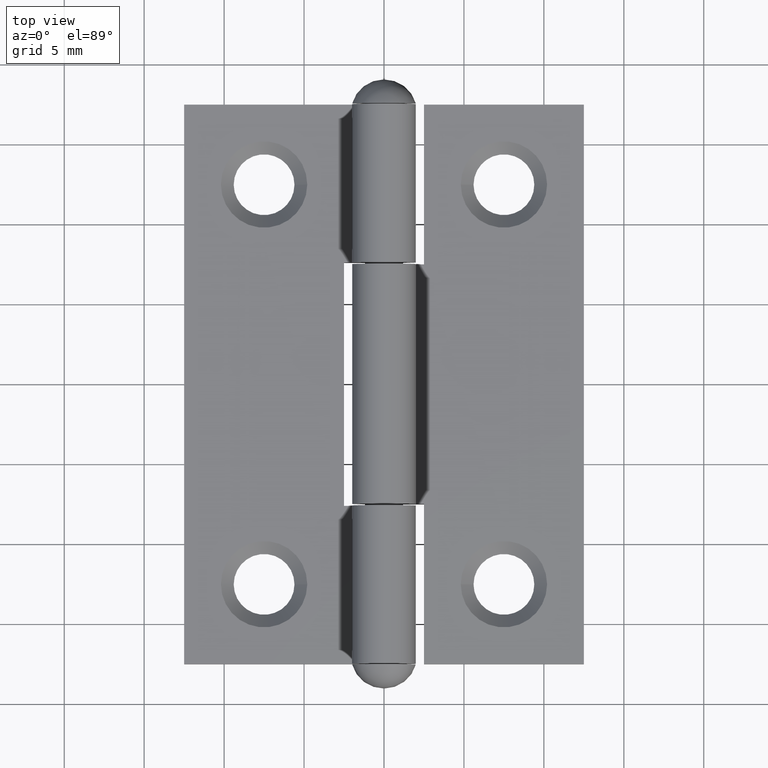
[diagram: clean part render]
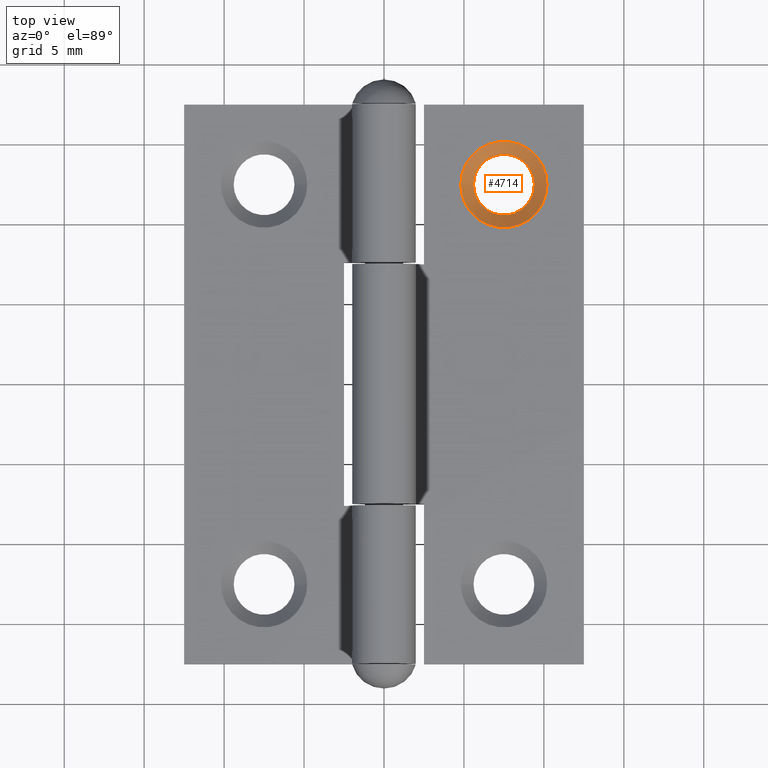
[diagram: same view with one face highlighted and labeled with its STEP entity id]
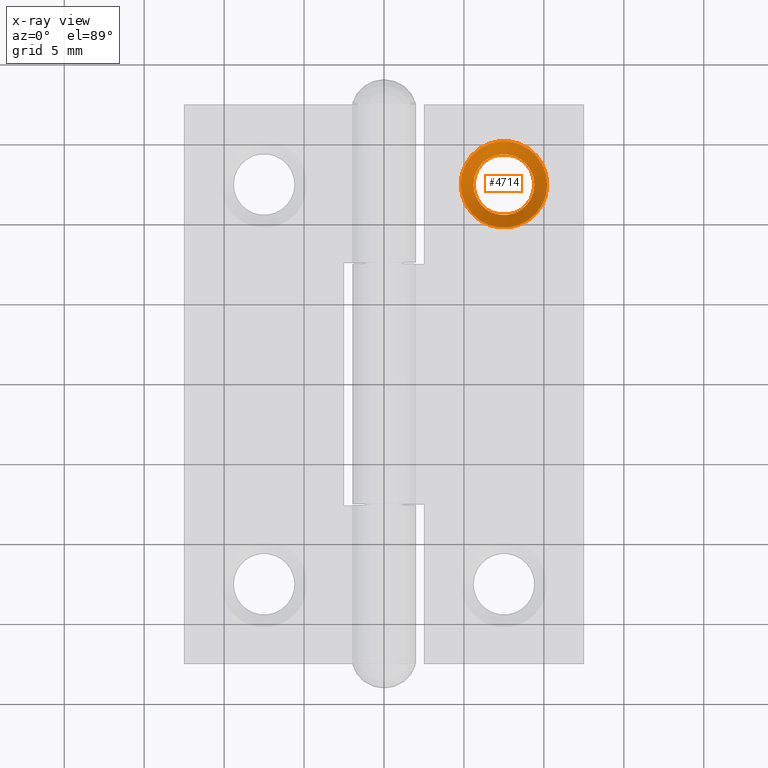
[diagram: x-ray of the same camera — body ghosted, the highlighted face saturated]
A machine part, top view. The second image highlights one B-rep face of the part: STEP entity #4714.
The next image is the same camera in x-ray: the body ghosted, the highlighted face saturated — about 0% of this face is hidden behind the body in this view.
In plain terms, the highlighted conical surface has half-angle 45 deg.
Its self-contained STEP definition (entity closure, byte-faithful):
#526 = ORIENTED_EDGE ( 'NONE', *, *, #4999, .F. ) ;
#1183 = FACE_OUTER_BOUND ( 'NONE', #4174, .T. ) ;
#1283 = CARTESIAN_POINT ( 'NONE',  ( -9.500000000000001776, -12.50000000000000178, 2.168404344971008868E-16 ) ) ;
#1420 = CONICAL_SURFACE ( 'NONE', #5784, 1.900000000000000577, 0.7853981633974482790 ) ;
#1536 = DIRECTION ( 'NONE',  ( -1.000000000000000000, 0.000000000000000000, 1.204669080539452055E-16 ) ) ;
#2130 = AXIS2_PLACEMENT_3D ( 'NONE', #6077, #8606, #1536 ) ;
#2676 = CIRCLE ( 'NONE', #6128, 1.900000000000000577 ) ;
#2919 = EDGE_LOOP ( 'NONE', ( #8788 ) ) ;
#3660 = DIRECTION ( 'NONE',  ( 1.000000000000000000, 0.000000000000000000, 0.000000000000000000 ) ) ;
#3681 = EDGE_CURVE ( 'NONE', #5932, #5932, #2676, .T. ) ;
#4174 = EDGE_LOOP ( 'NONE', ( #526 ) ) ;
#4432 = CARTESIAN_POINT ( 'NONE',  ( -9.500000000000001776, -12.50000000000000178, 7.025630077706070310E-15 ) ) ;
#4714 = ADVANCED_FACE ( 'NONE', ( #1183, #7469 ), #1420, .F. ) ;
#4999 = EDGE_CURVE ( 'NONE', #5163, #5163, #7330, .T. ) ;
#5163 = VERTEX_POINT ( 'NONE', #6891 ) ;
#5230 = DIRECTION ( 'NONE',  ( 1.000000000000000000, 0.000000000000000000, 0.000000000000000000 ) ) ;
#5784 = AXIS2_PLACEMENT_3D ( 'NONE', #4432, #6025, #5230 ) ;
#5932 = VERTEX_POINT ( 'NONE', #8492 ) ;
#6025 = DIRECTION ( 'NONE',  ( 0.000000000000000000, 0.000000000000000000, 1.000000000000000000 ) ) ;
#6077 = CARTESIAN_POINT ( 'NONE',  ( -9.500000000000001776, -12.50000000000000178, 0.8000000000000010436 ) ) ;
#6128 = AXIS2_PLACEMENT_3D ( 'NONE', #1283, #9908, #3660 ) ;
#6891 = CARTESIAN_POINT ( 'NONE',  ( -12.19999999999999574, -12.50000000000000178, 0.8000000000000013767 ) ) ;
#7330 = CIRCLE ( 'NONE', #2130, 2.699999999999993960 ) ;
#7469 = FACE_BOUND ( 'NONE', #2919, .T. ) ;
#8492 = CARTESIAN_POINT ( 'NONE',  ( -7.600000000000000533, -12.50000000000000178, 2.168404344971008868E-16 ) ) ;
#8606 = DIRECTION ( 'NONE',  ( -1.127570259384924611E-16, 0.000000000000000000, -1.000000000000000000 ) ) ;
#8788 = ORIENTED_EDGE ( 'NONE', *, *, #3681, .F. ) ;
#9908 = DIRECTION ( 'NONE',  ( 0.000000000000000000, 0.000000000000000000, 1.000000000000000000 ) ) ;